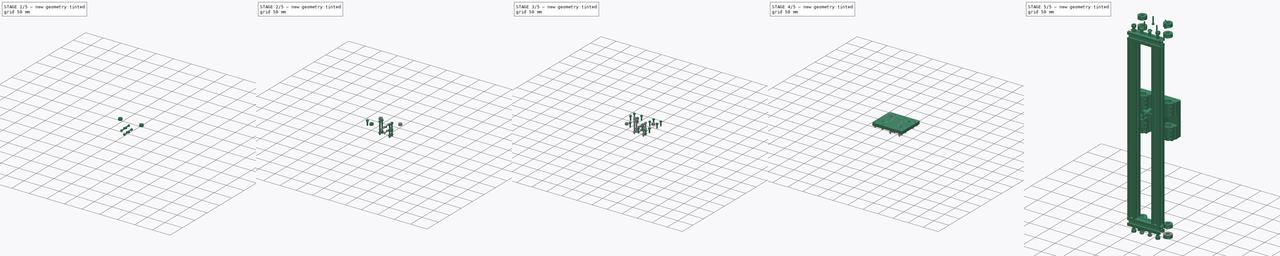
[diagram: build sequence overview — one tinted view per stage of 5, left to right]
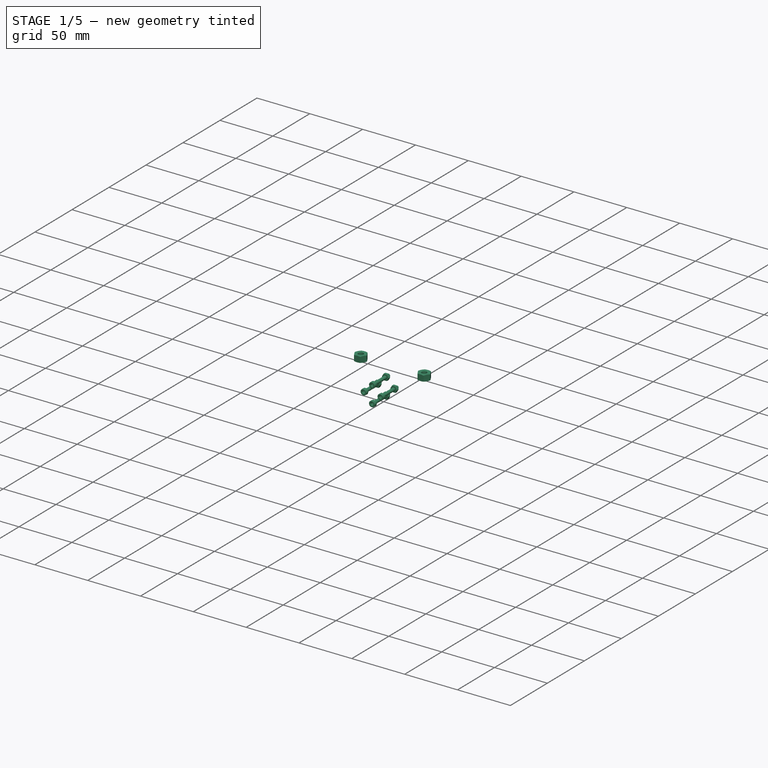
[diagram: stage 1 of 5 — iso view after this stage's code; geometry added in this stage tinted green]
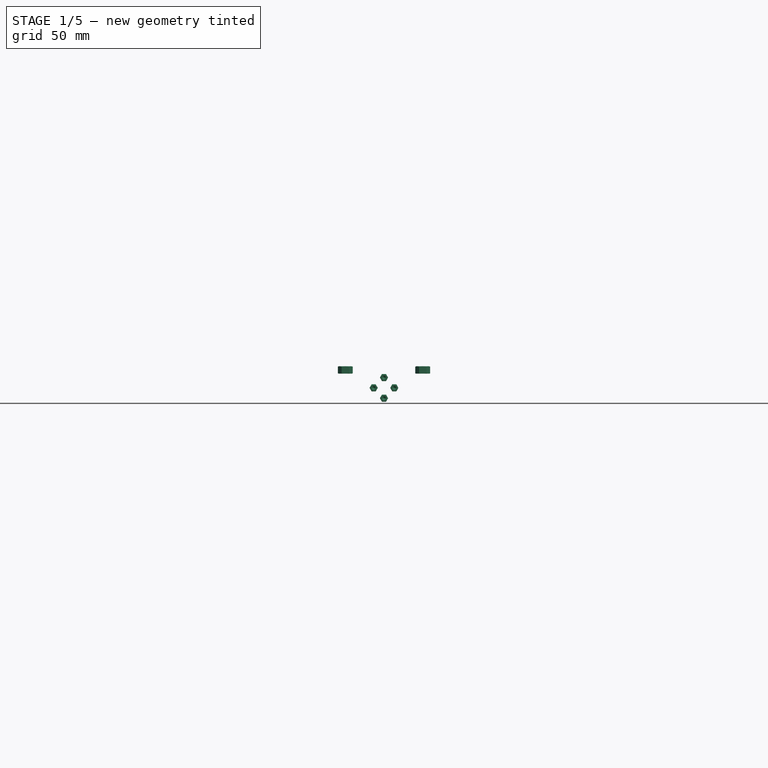
[diagram: stage 1 of 5 — front view after this stage's code; geometry added in this stage tinted green]
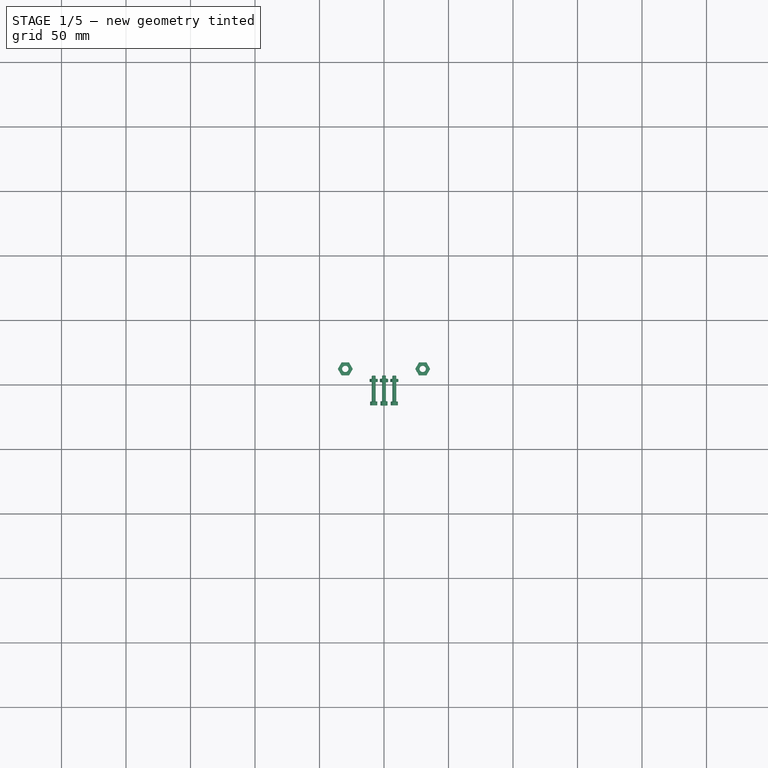
[diagram: stage 1 of 5 — top view after this stage's code; geometry added in this stage tinted green]
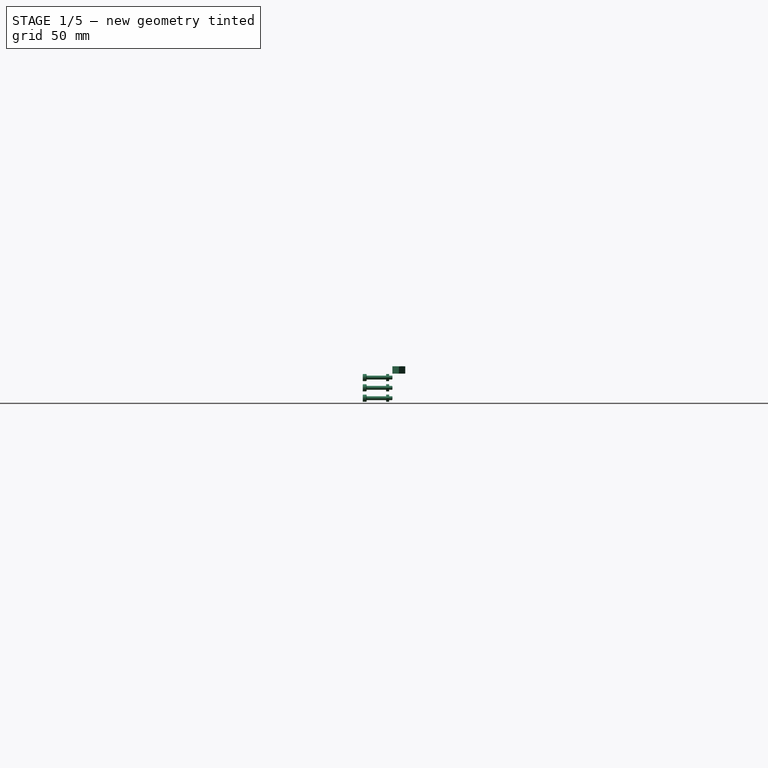
[diagram: stage 1 of 5 — right view after this stage's code; geometry added in this stage tinted green]
FCSTD DOCUMENT  (FreeCAD 0.19R17798 (Git))
Label: threaded_ass1e
License: All rights reserved
LicenseURL: http://en.wikipedia.org/wiki/All_rights_reserved
objects: Part::FeaturePython×42, Part::Feature×36, Part::Compound×22, Sketcher::SketchObject×5, PartDesign::Pocket×5, PartDesign::Fillet×3, PartDesign::Pad×1
note: 120 computed .brp shape members not serialized (recipe doc carries the construction recipe); baked Part::Feature solids carry a one-line shape summary decoded from their .brp

FEATURE [Part::FeaturePython] Nut006  label="M6-Nut004"  # Fasteners workbench fastener (typed FeaturePython)
  Placement = pos=(20,62,0) rot=(0,0,1;0rad)
  Visibility1 = false
  diameter = 2
  invert = false
  matchOuter = false
  offset = 0
  thread = false
  type = 2
FEATURE [Part::FeaturePython] Nut007  label="M6-Nut003"  # Fasteners workbench fastener (typed FeaturePython)
  Placement = pos=(80,62,0) rot=(0,0,1;0rad)
  Visibility1 = false
  diameter = 2
  invert = false
  matchOuter = false
  offset = 0
  thread = false
  type = 2
FEATURE [Part::FeaturePython] Screw032  label="M3x20-Screw"  # Fasteners workbench fastener (typed FeaturePython)
  Placement = pos=(50,37,-19) rot=(1,0,0;1.5708rad)
  Visibility1 = false
  diameter = 4
  invert = false
  length = 7
  matchOuter = false
  offset = 0
  thread = false
  type = 15
FEATURE [Part::FeaturePython] Nut008  label="M3-Nut"  # Fasteners workbench fastener (typed FeaturePython)
  Placement = pos=(50,54.5,-19) rot=(1,0,0;1.5708rad)
  Visibility1 = false
  diameter = 4
  invert = false
  matchOuter = false
  offset = 0
  thread = false
  type = 4
FEATURE [Part::Compound] Compound017  label="m3x20screwnut"
  Links = -> [Screw032,Nut008]
  Placement = pos=(8,0,8) rot=(0,0,1;0rad)
FEATURE [Part::FeaturePython] Screw033  label="M3x20-Screw001"  # Fasteners workbench fastener (typed FeaturePython)
  Placement = pos=(50,37,-19) rot=(1,0,0;1.5708rad)
  Visibility1 = false
  diameter = 4
  invert = false
  length = 7
  matchOuter = false
  offset = 0
  thread = false
  type = 15
FEATURE [Part::FeaturePython] Nut009  label="M3-Nut001"  # Fasteners workbench fastener (typed FeaturePython)
  Placement = pos=(50,54.5,-19) rot=(1,0,0;1.5708rad)
  Visibility1 = false
  diameter = 4
  invert = false
  matchOuter = false
  offset = 0
  thread = false
  type = 4
FEATURE [Part::Compound] Compound018  label="m3x20screwnut001"
  Links = -> [Screw033,Nut009]
  Placement = pos=(0,0,16) rot=(0,0,1;0rad)
FEATURE [Part::FeaturePython] Screw034  label="M3x20-Screw002"  # Fasteners workbench fastener (typed FeaturePython)
  Placement = pos=(50,37,-19) rot=(1,0,0;1.5708rad)
  Visibility1 = false
  diameter = 4
  invert = false
  length = 7
  matchOuter = false
  offset = 0
  thread = false
  type = 15
FEATURE [Part::FeaturePython] Nut010  label="M3-Nut002"  # Fasteners workbench fastener (typed FeaturePython)
  Placement = pos=(50,54.5,-19) rot=(1,0,0;1.5708rad)
  Visibility1 = false
  diameter = 4
  invert = false
  matchOuter = false
  offset = 0
  thread = false
  type = 4
FEATURE [Part::Compound] Compound019  label="m3x20screwnut002"
  Links = -> [Screw034,Nut010]
FEATURE [Part::FeaturePython] Screw035  label="M3x20-Screw003"  # Fasteners workbench fastener (typed FeaturePython)
  Placement = pos=(50,37,-19) rot=(1,0,0;1.5708rad)
  Visibility1 = false
  diameter = 4
  invert = false
  length = 7
  matchOuter = false
  offset = 0
  thread = false
  type = 15
FEATURE [Part::FeaturePython] Nut011  label="M3-Nut003"  # Fasteners workbench fastener (typed FeaturePython)
  Placement = pos=(50,54.5,-19) rot=(1,0,0;1.5708rad)
  Visibility1 = false
  diameter = 4
  invert = false
  matchOuter = false
  offset = 0
  thread = false
  type = 4
FEATURE [Part::Compound] Compound020  label="m3x20screwnut003"
  Links = -> [Screw035,Nut011]
  Placement = pos=(-8,0,8) rot=(0,0,1;0rad)
FEATURE [Part::Compound] Compound021  label="m3x20screwnuts"
  Links = -> [Compound017,Compound018,Compound019,Compound020]
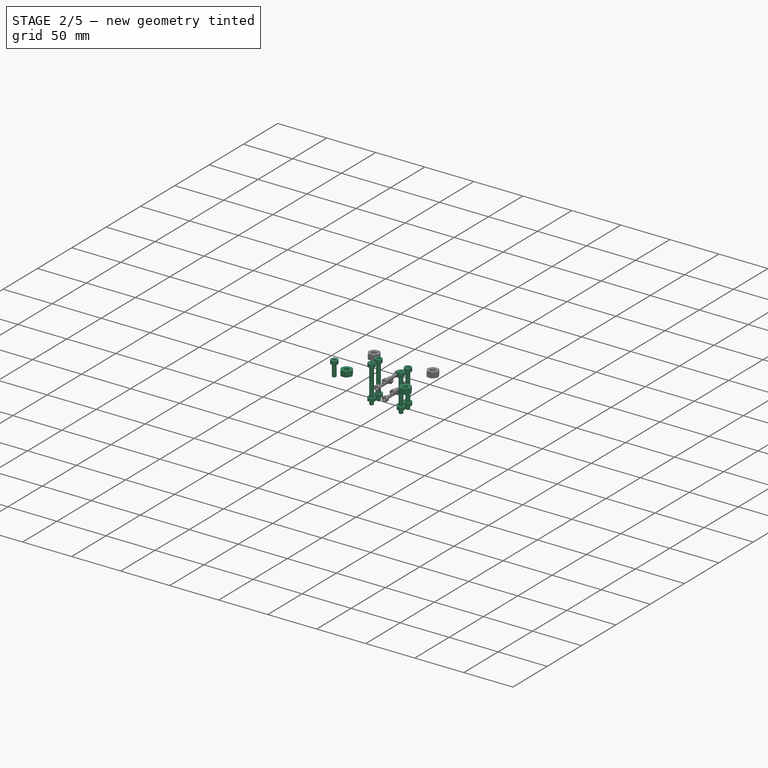
[diagram: stage 2 of 5 — iso view after this stage's code; geometry added in this stage tinted green]
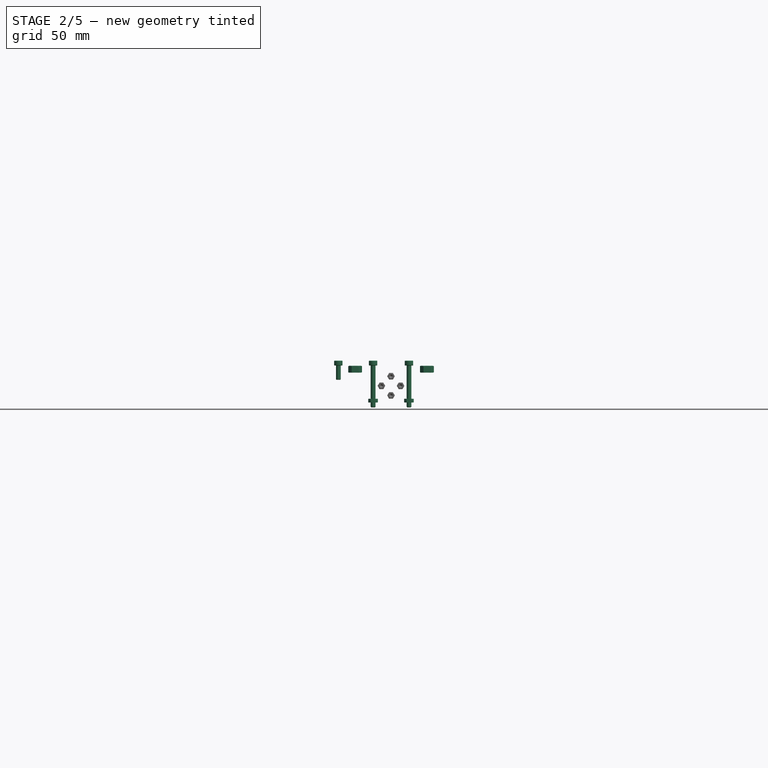
[diagram: stage 2 of 5 — front view after this stage's code; geometry added in this stage tinted green]
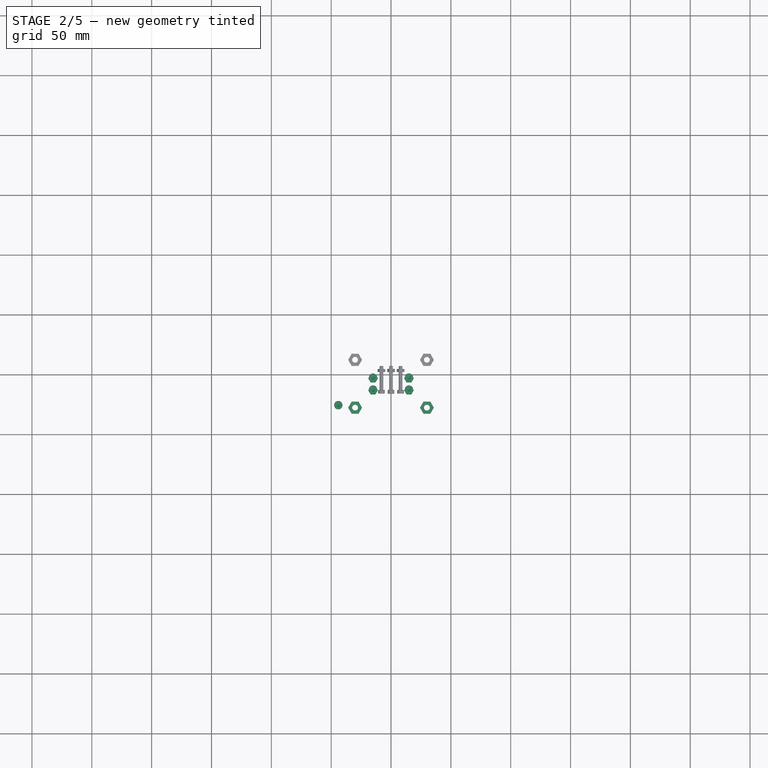
[diagram: stage 2 of 5 — top view after this stage's code; geometry added in this stage tinted green]
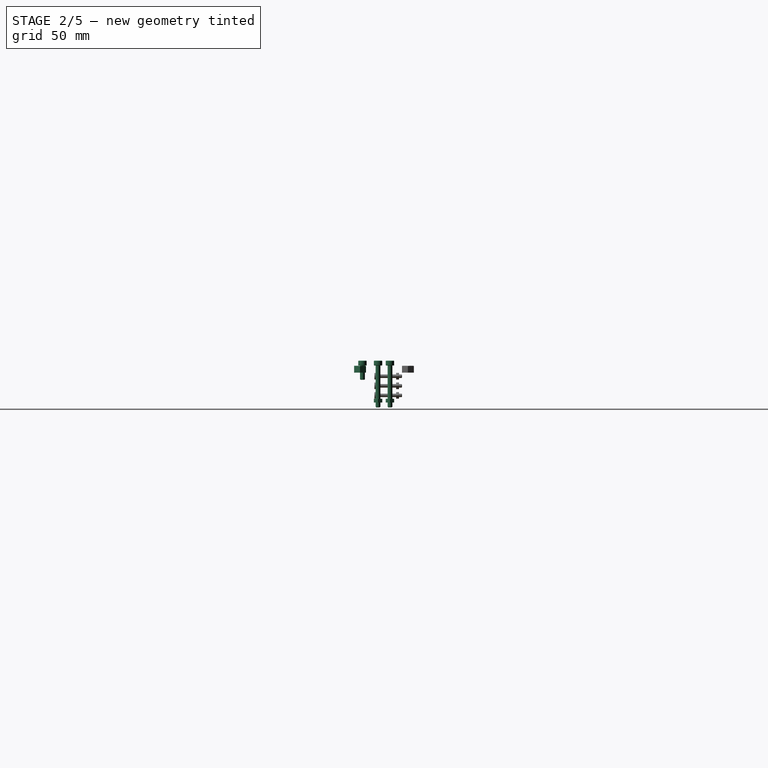
[diagram: stage 2 of 5 — right view after this stage's code; geometry added in this stage tinted green]
FEATURE [Part::FeaturePython] Screw027  label="M4x12-Screw015"  # Fasteners workbench fastener (typed FeaturePython)
  Placement = pos=(6,24,6) rot=(0,0,1;0rad)
  Visibility1 = false
  diameter = 5
  invert = false
  length = 3
  matchOuter = false
  offset = 0
  thread = false
  type = 15
FEATURE [Part::FeaturePython] Screw028  label="M4x35-Screw"  # Fasteners workbench fastener (typed FeaturePython)
  Placement = pos=(35,37,6) rot=(0,0,1;0rad)
  Visibility1 = false
  diameter = 5
  invert = false
  length = 9
  matchOuter = false
  offset = 0
  thread = false
  type = 15
FEATURE [Part::FeaturePython] Screw029  label="M4x35-Screw001"  # Fasteners workbench fastener (typed FeaturePython)
  Placement = pos=(65,37,6) rot=(0,0,1;0rad)
  Visibility1 = false
  diameter = 5
  invert = false
  length = 9
  matchOuter = false
  offset = 0
  thread = false
  type = 15
FEATURE [Part::FeaturePython] Screw030  label="M4x35-Screw002"  # Fasteners workbench fastener (typed FeaturePython)
  Placement = pos=(65,47,6) rot=(0,0,1;0rad)
  Visibility1 = false
  diameter = 5
  invert = false
  length = 9
  matchOuter = false
  offset = 0
  thread = false
  type = 15
FEATURE [Part::FeaturePython] Screw031  label="M4x35-Screw003"  # Fasteners workbench fastener (typed FeaturePython)
  Placement = pos=(35,47,6) rot=(0,0,1;0rad)
  Visibility1 = false
  diameter = 5
  invert = false
  length = 9
  matchOuter = false
  offset = 0
  thread = false
  type = 15
FEATURE [Part::Compound] Compound005  label="m4x35ers"
  Links = -> [Screw028,Screw029,Screw030,Screw031]
FEATURE [Part::FeaturePython] Nut001  label="M4-Nut"  # Fasteners workbench fastener (typed FeaturePython)
  Placement = pos=(35,37,-25) rot=(0,0,1;0rad)
  Visibility1 = false
  diameter = 6
  invert = false
  matchOuter = false
  offset = 0
  thread = false
  type = 4
FEATURE [Part::FeaturePython] Nut002  label="M4-Nut001"  # Fasteners workbench fastener (typed FeaturePython)
  Placement = pos=(35,47,-25) rot=(0,0,1;0rad)
  Visibility1 = false
  diameter = 6
  invert = false
  matchOuter = false
  offset = 0
  thread = false
  type = 4
FEATURE [Part::FeaturePython] Nut003  label="M4-Nut002"  # Fasteners workbench fastener (typed FeaturePython)
  Placement = pos=(65,47,-25) rot=(0,0,1;0rad)
  Visibility1 = false
  diameter = 6
  invert = false
  matchOuter = false
  offset = 0
  thread = false
  type = 4
FEATURE [Part::FeaturePython] Nut004  label="M4-Nut003"  # Fasteners workbench fastener (typed FeaturePython)
  Placement = pos=(65,37,-25) rot=(0,0,1;0rad)
  Visibility1 = false
  diameter = 6
  invert = false
  matchOuter = false
  offset = 0
  thread = false
  type = 4
FEATURE [Part::Compound] Compound015  label="m4nuts"
  Links = -> [Nut001,Nut002,Nut003,Nut004]
FEATURE [Part::FeaturePython] Nut  label="M6-Nut"  # Fasteners workbench fastener (typed FeaturePython)
  Placement = pos=(20,22,0) rot=(0,0,1;0rad)
  Visibility1 = false
  diameter = 2
  invert = false
  matchOuter = false
  offset = 0
  thread = false
  type = 2
FEATURE [Part::FeaturePython] Nut005  label="M6-Nut001"  # Fasteners workbench fastener (typed FeaturePython)
  Placement = pos=(80,22,0) rot=(0,0,1;0rad)
  Visibility1 = false
  diameter = 2
  invert = false
  matchOuter = false
  offset = 0
  thread = false
  type = 2
FEATURE [Part::Compound] Compound016  label="m6nuts"
  Links = -> [Nut,Nut005,Nut006,Nut007]
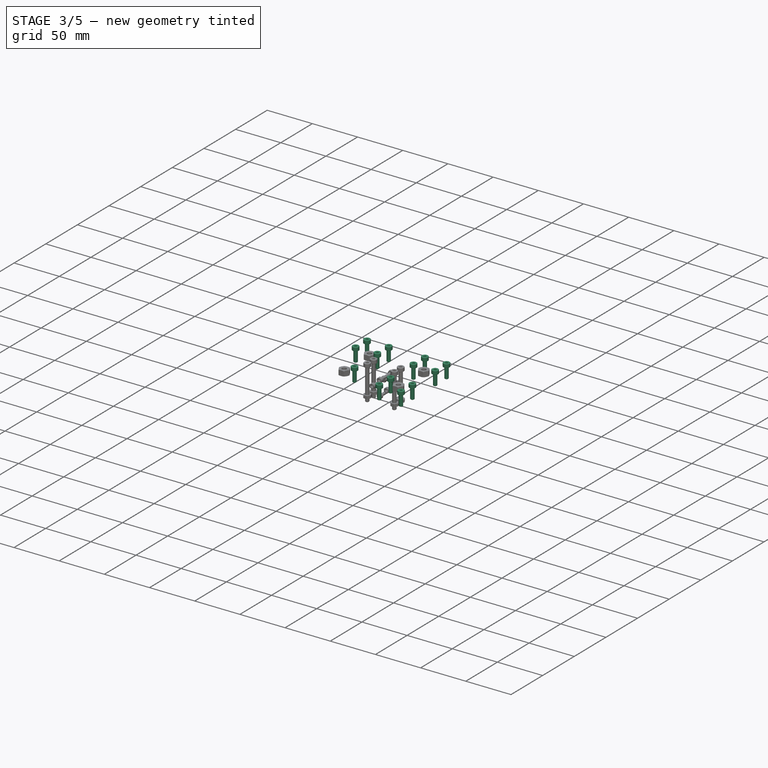
[diagram: stage 3 of 5 — iso view after this stage's code; geometry added in this stage tinted green]
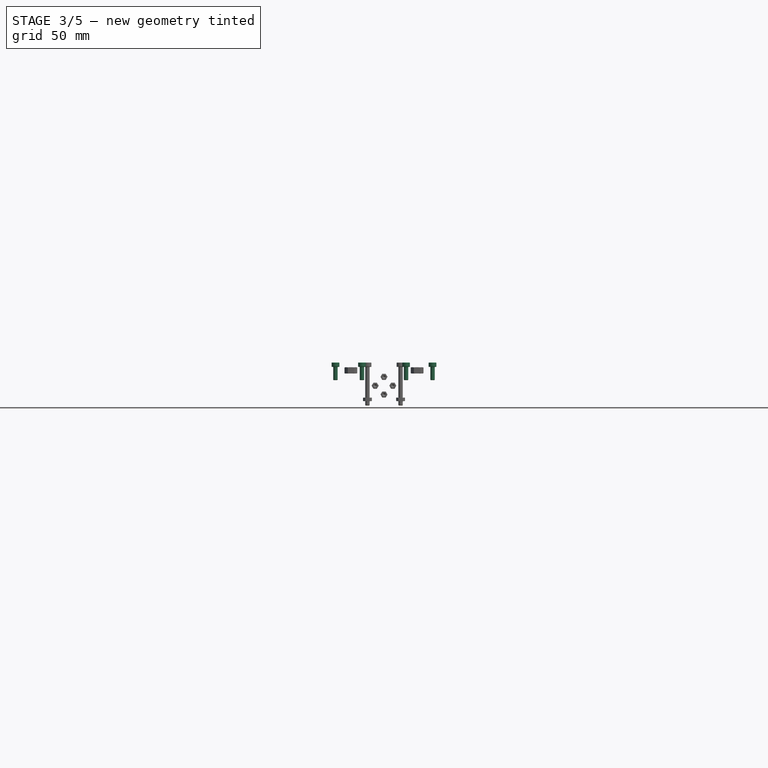
[diagram: stage 3 of 5 — front view after this stage's code; geometry added in this stage tinted green]
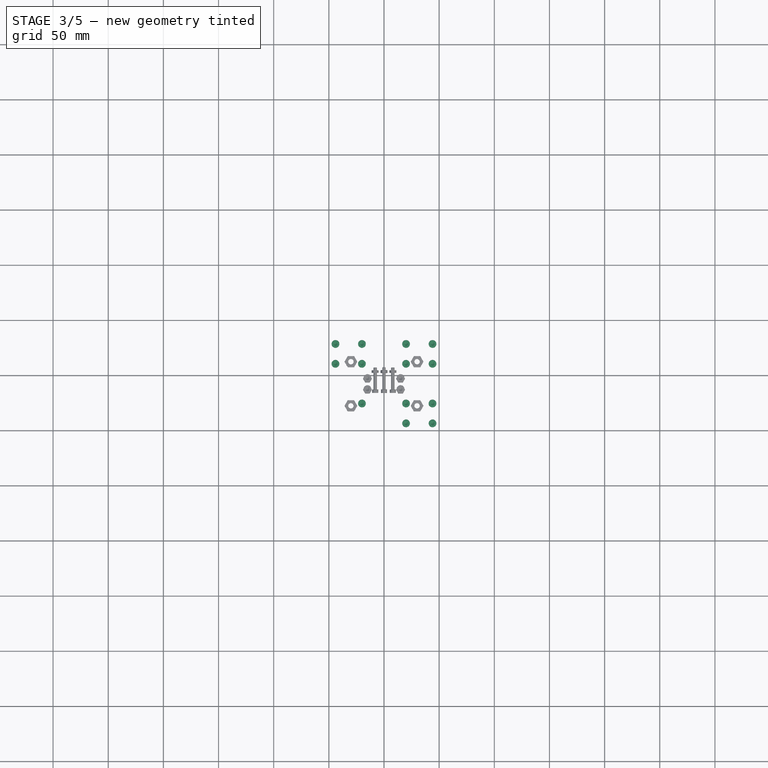
[diagram: stage 3 of 5 — top view after this stage's code; geometry added in this stage tinted green]
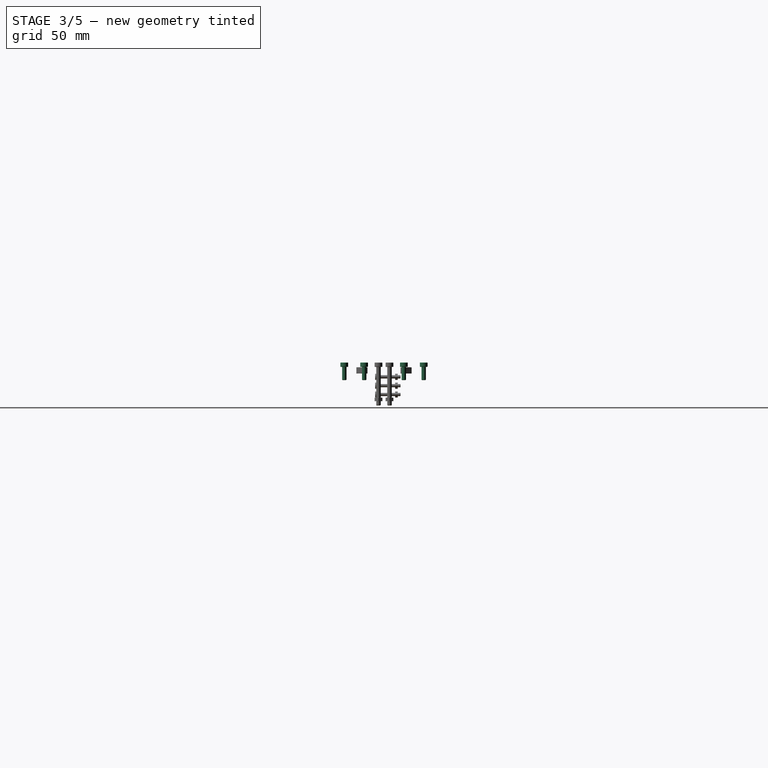
[diagram: stage 3 of 5 — right view after this stage's code; geometry added in this stage tinted green]
FEATURE [Part::FeaturePython] Screw002  label="M4x12-Screw002"  # Fasteners workbench fastener (typed FeaturePython)
  Placement = pos=(30,24,6) rot=(0,0,1;0rad)
  Visibility1 = false
  diameter = 5
  invert = false
  length = 3
  matchOuter = false
  offset = 0
  thread = false
  type = 15
FEATURE [Part::Feature] Fusion002  label="sc8uu001"
  Placement = pos=(82,15,-22) rot=(0,0,1;0rad)
  shape: bbox 34.5 x 30 x 22 mm, 638 faces, 2 solids (baked)
FEATURE [Part::FeaturePython] Screw004  label="M4x12-Screw004"  # Fasteners workbench fastener (typed FeaturePython)
  Placement = pos=(30,6,6) rot=(0,0,1;0rad)
  Visibility1 = false
  diameter = 5
  invert = false
  length = 3
  matchOuter = false
  offset = 0
  thread = false
  type = 15
FEATURE [Part::FeaturePython] Screw005  label="M4x12-Screw005"  # Fasteners workbench fastener (typed FeaturePython)
  Placement = pos=(6,6,6) rot=(0,0,1;0rad)
  Visibility1 = false
  diameter = 5
  invert = false
  length = 3
  matchOuter = false
  offset = 0
  thread = false
  type = 15
FEATURE [Part::FeaturePython] Screw006  label="M4x12-Screw006"  # Fasteners workbench fastener (typed FeaturePython)
  Placement = pos=(30,24,6) rot=(0,0,1;0rad)
  Visibility1 = false
  diameter = 5
  invert = false
  length = 3
  matchOuter = false
  offset = 0
  thread = false
  type = 15
FEATURE [Part::FeaturePython] Screw007  label="M4x12-Screw007"  # Fasteners workbench fastener (typed FeaturePython)
  Placement = pos=(6,24,6) rot=(0,0,1;0rad)
  Visibility1 = false
  diameter = 5
  invert = false
  length = 3
  matchOuter = false
  offset = 0
  thread = false
  type = 15
FEATURE [Part::Compound] Compound014  label="m4x12_4er001"
  Links = -> [Screw005,Screw004,Screw006,Screw007]
  Placement = pos=(64,0,0) rot=(0,0,1;0rad)
FEATURE [Part::FeaturePython] Screw008  label="M4x12-Screw008"  # Fasteners workbench fastener (typed FeaturePython)
  Placement = pos=(30,6,6) rot=(0,0,1;0rad)
  Visibility1 = false
  diameter = 5
  invert = false
  length = 3
  matchOuter = false
  offset = 0
  thread = false
  type = 15
FEATURE [Part::FeaturePython] Screw021  label="M4x12-Screw009"  # Fasteners workbench fastener (typed FeaturePython)
  Placement = pos=(30,24,6) rot=(0,0,1;0rad)
  Visibility1 = false
  diameter = 5
  invert = false
  length = 3
  matchOuter = false
  offset = 0
  thread = false
  type = 15
FEATURE [Part::FeaturePython] Screw022  label="M4x12-Screw010"  # Fasteners workbench fastener (typed FeaturePython)
  Placement = pos=(6,24,6) rot=(0,0,1;0rad)
  Visibility1 = false
  diameter = 5
  invert = false
  length = 3
  matchOuter = false
  offset = 0
  thread = false
  type = 15
FEATURE [Part::FeaturePython] Screw023  label="M4x12-Screw011"  # Fasteners workbench fastener (typed FeaturePython)
  Placement = pos=(6,6,6) rot=(0,0,1;0rad)
  Visibility1 = false
  diameter = 5
  invert = false
  length = 3
  matchOuter = false
  offset = 0
  thread = false
  type = 15
FEATURE [Part::Compound] Compound002  label="m4x12_4er002"
  Links = -> [Screw023,Screw008,Screw021,Screw022]
  Placement = pos=(64,54,0) rot=(0,0,1;0rad)
FEATURE [Part::FeaturePython] Screw024  label="M4x12-Screw012"  # Fasteners workbench fastener (typed FeaturePython)
  Placement = pos=(6,6,6) rot=(0,0,1;0rad)
  Visibility1 = false
  diameter = 5
  invert = false
  length = 3
  matchOuter = false
  offset = 0
  thread = false
  type = 15
FEATURE [Part::FeaturePython] Screw025  label="M4x12-Screw013"  # Fasteners workbench fastener (typed FeaturePython)
  Placement = pos=(30,6,6) rot=(0,0,1;0rad)
  Visibility1 = false
  diameter = 5
  invert = false
  length = 3
  matchOuter = false
  offset = 0
  thread = false
  type = 15
FEATURE [Part::FeaturePython] Screw026  label="M4x12-Screw014"  # Fasteners workbench fastener (typed FeaturePython)
  Placement = pos=(30,24,6) rot=(0,0,1;0rad)
  Visibility1 = false
  diameter = 5
  invert = false
  length = 3
  matchOuter = false
  offset = 0
  thread = false
  type = 15
FEATURE [Part::Compound] Compound003  label="m4x12_4er003"
  Links = -> [Screw024,Screw025,Screw026,Screw027]
  Placement = pos=(0,54,0) rot=(0,0,1;0rad)
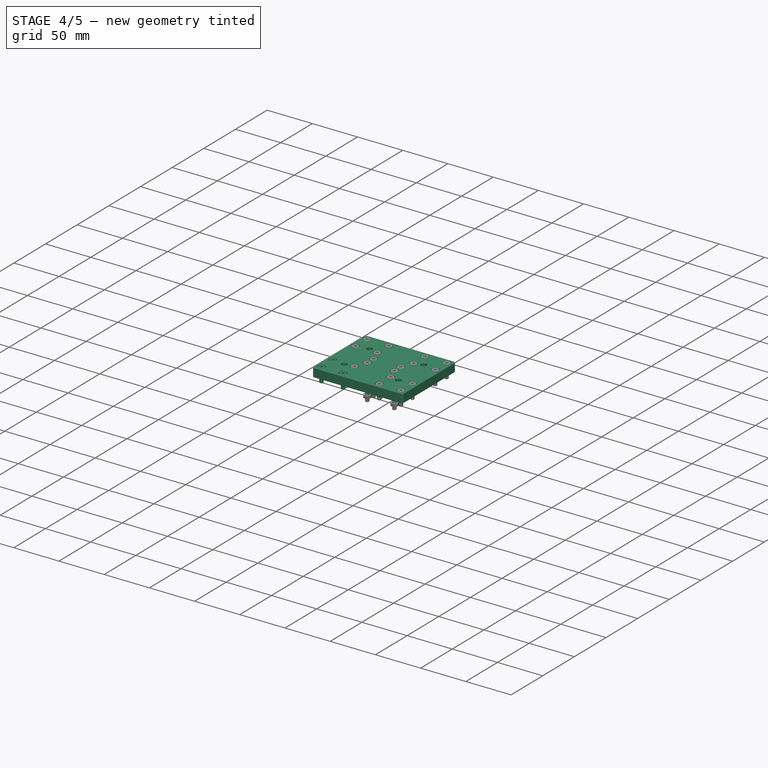
[diagram: stage 4 of 5 — iso view after this stage's code; geometry added in this stage tinted green]
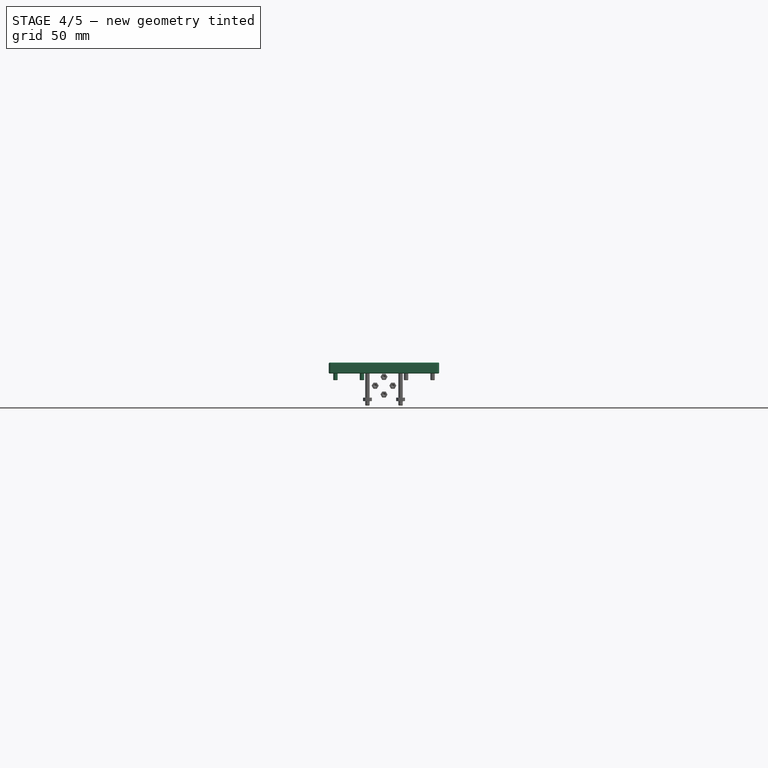
[diagram: stage 4 of 5 — front view after this stage's code; geometry added in this stage tinted green]
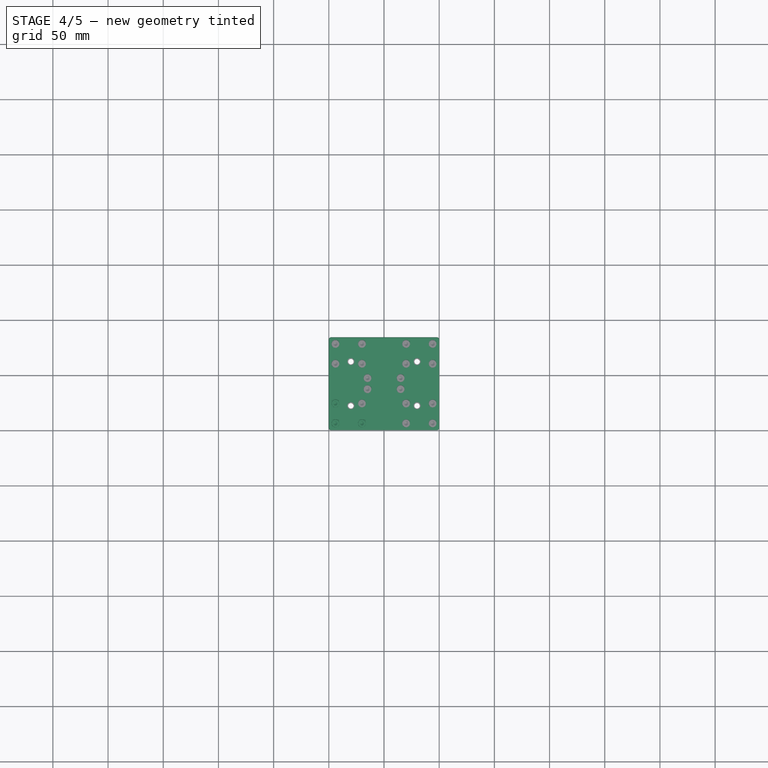
[diagram: stage 4 of 5 — top view after this stage's code; geometry added in this stage tinted green]
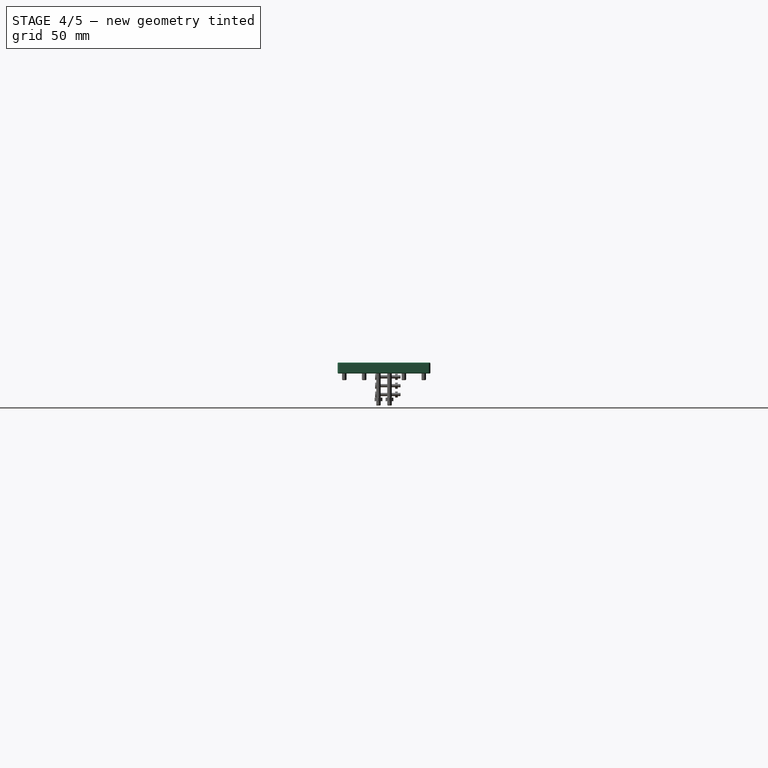
[diagram: stage 4 of 5 — right view after this stage's code; geometry added in this stage tinted green]
FEATURE [Part::FeaturePython] Screw020  label="M4x12-Screw"  # Fasteners workbench fastener (typed FeaturePython)
  Placement = pos=(6,6,6) rot=(0,0,1;0rad)
  Visibility1 = false
  diameter = 5
  invert = false
  length = 3
  matchOuter = false
  offset = 0
  thread = false
  type = 15
FEATURE [Part::Feature] Fusion003  label="sc8uu002"
  Placement = pos=(18,69,-22) rot=(0,0,1;0rad)
  shape: bbox 34.5 x 30 x 22 mm, 638 faces, 2 solids (baked)
FEATURE [Part::FeaturePython] Screw001  label="M4x12-Screw001"  # Fasteners workbench fastener (typed FeaturePython)
  Placement = pos=(30,6,6) rot=(0,0,1;0rad)
  Visibility1 = false
  diameter = 5
  invert = false
  length = 3
  matchOuter = false
  offset = 0
  thread = false
  type = 15
FEATURE [Part::FeaturePython] Screw003  label="M4x12-Screw003"  # Fasteners workbench fastener (typed FeaturePython)
  Placement = pos=(6,24,6) rot=(0,0,1;0rad)
  Visibility1 = false
  diameter = 5
  invert = false
  length = 3
  matchOuter = false
  offset = 0
  thread = false
  type = 15
FEATURE [Part::Compound] Compound013  label="m4x12_4er"
  Links = -> [Screw020,Screw001,Screw002,Screw003]
FEATURE [Part::Feature] Cut001  label="trapeznut"
  Placement = pos=(50,35,-11) rot=(0,0,1;1.5708rad)
  shape: bbox 22 x 24 x 22 mm, 53 faces (baked)
FEATURE [Part::Feature] Chamfer002001  label="nutblock"
  Placement = pos=(25,32,-22) rot=(0,0,1;0rad)
  shape: bbox 50 x 20 x 22 mm, 53 faces (baked)
FEATURE [Part::Feature] Fusion004  label="sc8uu003"
  Placement = pos=(82,69,-22) rot=(0,0,1;0rad)
  shape: bbox 34.5 x 30 x 22 mm, 638 faces, 2 solids (baked)
FEATURE [Part::Feature] Fusion001001006  label="sc8uu"
  Placement = pos=(18,15,-22) rot=(0,0,1;0rad)
  shape: bbox 34.5 x 30 x 22 mm, 638 faces, 2 solids (baked)
FEATURE [Sketcher::SketchObject] Sketch
  MapMode = 5
  Support = -> [XY_Plane]
  sketch-geometry (4):
    g0: LineSegment StartX=0 StartY=84 StartZ=0 EndX=100 EndY=84 EndZ=0
    g1: LineSegment StartX=100 StartY=84 StartZ=0 EndX=100 EndY=0 EndZ=0
    g2: LineSegment StartX=100 StartY=0 StartZ=0 EndX=0 EndY=0 EndZ=0
    g3: LineSegment StartX=0 StartY=0 StartZ=0 EndX=0 EndY=84 EndZ=0
  constraints (11):
    c: Coincident(g0,g1)
    c: Coincident(g1,g2)
    c: Coincident(g2,g3)
    c: Coincident(g3,g0)
    c: Horizontal(g0)
    c: Horizontal(g2)
    c: Vertical(g1)
    c: Vertical(g3)
    c: Coincident(g2,g-1)
    c: DistanceX(g0,g0) = 100
    c: DistanceY(g3,g3) = 84
FEATURE [PartDesign::Pad] Pad
  Length = 10
  Length2 = 100
  Profile = -> Sketch
  Type = 0
FEATURE [Sketcher::SketchObject] Sketch001
  MapMode = 5
  Placement = pos=(0,0,10) rot=(0,0,1;0rad)
  Support = -> [Pad]
  sketch-geometry (20):
    g0: Circle CenterX=6 CenterY=78 CenterZ=0 NormalX=0 NormalY=0 NormalZ=1 AngleXU=0 Radius=2.1
    g1: Circle CenterX=30 CenterY=78 CenterZ=0 NormalX=0 NormalY=0 NormalZ=1 AngleXU=0 Radius=2.1
    g2: Circle CenterX=6 CenterY=60 CenterZ=0 NormalX=0 NormalY=0 NormalZ=1 AngleXU=0 Radius=2.1
    g3: Circle CenterX=30 CenterY=60 CenterZ=0 NormalX=0 NormalY=0 NormalZ=1 AngleXU=0 Radius=2.1
    g4: Circle CenterX=6 CenterY=24 CenterZ=0 NormalX=0 NormalY=0 NormalZ=1 AngleXU=0 Radius=2.1
    g5: Circle CenterX=30 CenterY=24 CenterZ=0 NormalX=0 NormalY=0 NormalZ=1 AngleXU=0 Radius=2.1
    g6: Circle CenterX=6 CenterY=6 CenterZ=0 NormalX=0 NormalY=0 NormalZ=1 AngleXU=0 Radius=2.1
    g7: Circle CenterX=30 CenterY=6 CenterZ=0 NormalX=0 NormalY=0 NormalZ=1 AngleXU=0 Radius=2.1
    g8: Circle CenterX=70 CenterY=78 CenterZ=0 NormalX=0 NormalY=0 NormalZ=1 AngleXU=0 Radius=2.1
    g9: Circle CenterX=94 CenterY=78 CenterZ=0 NormalX=0 NormalY=0 NormalZ=1 AngleXU=0 Radius=2.1
    g10: Circle CenterX=70 CenterY=60 CenterZ=0 NormalX=0 NormalY=0 NormalZ=1 AngleXU=0 Radius=2.1
    g11: Circle CenterX=94 CenterY=60 CenterZ=0 NormalX=0 NormalY=0 NormalZ=1 AngleXU=0 Radius=2.1
    g12: Circle CenterX=70 CenterY=24 CenterZ=0 NormalX=0 NormalY=0 NormalZ=1 AngleXU=0 Radius=2.1
    g13: Circle CenterX=94 CenterY=24 CenterZ=0 NormalX=0 NormalY=0 NormalZ=1 AngleXU=0 Radius=2.1
    g14: Circle CenterX=70 CenterY=6 CenterZ=0 NormalX=0 NormalY=0 NormalZ=1 AngleXU=0 Radius=2.1
    g15: Circle CenterX=94 CenterY=6 CenterZ=0 NormalX=0 NormalY=0 NormalZ=1 AngleXU=0 Radius=2.1
    g16: Circle CenterX=35 CenterY=47 CenterZ=0 NormalX=0 NormalY=0 NormalZ=1 AngleXU=0 Radius=2.1
    g17: Circle CenterX=65 CenterY=47 CenterZ=0 NormalX=0 NormalY=0 NormalZ=1 AngleXU=0 Radius=2.1
    g18: Circle CenterX=35 CenterY=37 CenterZ=0 NormalX=0 NormalY=0 NormalZ=1 AngleXU=0 Radius=2.1
    g19: Circle CenterX=65 CenterY=37 CenterZ=0 NormalX=0 NormalY=0 NormalZ=1 AngleXU=0 Radius=2.1
  constraints (60):
    c: DistanceX(g-1,g6) = 6
    c: DistanceX(g-1,g15) = 94
    c: DistanceX(g6,g4) = 0
    c: DistanceX(g4,g2) = 0
    c: DistanceX(g2,g0) = 0
    c: DistanceX(g13,g15) = 0
    c: DistanceX(g11,g13) = 0
    c: DistanceX(g9,g11) = 0
    c: DistanceX(g6,g7) = 24
    c: DistanceX(g14,g15) = 24
    c: DistanceX(g5,g7) = 0
    c: DistanceX(g3,g5) = 0
    c: DistanceX(g3,g1) = 0
    c: DistanceX(g12,g14) = 0
    c: DistanceX(g10,g12) = 0
    c: DistanceX(g8,g10) = 0
    c: DistanceY(g-1,g6) = 6
    c: DistanceY(g-1,g0) = 78
    c: DistanceY(g6,g4) = 18
    c: DistanceY(g2,g0) = 18
    c: DistanceY(g6,g7) = 0
    c: DistanceY(g7,g14) = 0
    c: DistanceY(g14,g15) = 0
    c: DistanceY(g4,g5) = 0
    c: DistanceY(g5,g12) = 0
    c: DistanceY(g12,g13) = 0
    c: DistanceY(g3,g2) = 0
    c: DistanceY(g3,g10) = 0
    c: DistanceY(g10,g11) = 0
    c: DistanceY(g1,g0) = 0
    c: DistanceY(g8,g1) = 0
    c: DistanceY(g9,g8) = 0
    c: Radius(g0) = 2.1
    c: Equal(g0,g2)
    c: Equal(g0,g4)
    c: Equal(g0,g6)
    c: Equal(g0,g1)
    c: Equal(g0,g3)
    c: Equal(g0,g5)
    c: Equal(g0,g7)
    c: Equal(g0,g14)
    c: Equal(g0,g12)
    c: Equal(g0,g10)
    c: Equal(g0,g8)
    c: Equal(g0,g9)
    c: Equal(g0,g11)
    c: Equal(g0,g13)
    c: Equal(g0,g15)
    c: DistanceX(g-1,g18) = 35
    c: DistanceY(g-1,g18) = 37
    c: DistanceX(g18,g19) = 30
    c: DistanceY(g18,g19) = 0
    c: DistanceX(g16,g18) = 0
    c: DistanceY(g18,g16) = 10
    c: DistanceY(g16,g17) = 0
    c: DistanceX(g17,g19) = 0
    c: Radius(g16) = 2.1
    c: Equal(g16,g17)
    c: Equal(g16,g19)
    c: Equal(g16,g18)
FEATURE [PartDesign::Pocket] Pocket
  BaseFeature = -> Pad
  Length = 10
  Length2 = 100
  Profile = -> Sketch001
  Type = 0
FEATURE [Sketcher::SketchObject] Sketch002
  MapMode = 5
  Placement = pos=(0,0,10) rot=(0,0,1;0rad)
  Support = -> [Pocket]
  sketch-geometry (4):
    g0: Circle CenterX=20 CenterY=62 CenterZ=0 NormalX=0 NormalY=0 NormalZ=1 AngleXU=0 Radius=3.2
    g1: Circle CenterX=20 CenterY=22 CenterZ=0 NormalX=0 NormalY=0 NormalZ=1 AngleXU=0 Radius=3.2
    g2: Circle CenterX=80 CenterY=62 CenterZ=0 NormalX=0 NormalY=0 NormalZ=1 AngleXU=0 Radius=3.2
    g3: Circle CenterX=80 CenterY=22 CenterZ=0 NormalX=0 NormalY=0 NormalZ=1 AngleXU=0 Radius=3.2
  constraints (12):
    c: DistanceX(g-1,g1) = 20
    c: DistanceY(g-1,g1) = 22
    c: DistanceX(g1,g3) = 60
    c: DistanceY(g1,g0) = 40
    c: DistanceY(g1,g3) = 0
    c: DistanceY(g2,g0) = 0
    c: DistanceX(g2,g3) = 0
    c: Radius(g0) = 3.2
    c: Equal(g0,g2)
    c: Equal(g0,g3)
    c: Equal(g0,g1)
    c: DistanceX(g1,g0) = 0
FEATURE [PartDesign::Pocket] Pocket001
  BaseFeature = -> Pocket
  Length = 10
  Length2 = 100
  Profile = -> Sketch002
  Type = 0
FEATURE [Sketcher::SketchObject] Sketch003
  MapMode = 5
  Placement = pos=(0,0,10) rot=(0,0,1;0rad)
  Support = -> [Pocket001]
  sketch-geometry (20):
    g0: Circle CenterX=6 CenterY=78 CenterZ=0 NormalX=0 NormalY=0 NormalZ=1 AngleXU=0 Radius=4
    g1: Circle CenterX=30 CenterY=78 CenterZ=0 NormalX=0 NormalY=0 NormalZ=1 AngleXU=0 Radius=4
    g2: Circle CenterX=30 CenterY=60 CenterZ=0 NormalX=0 NormalY=0 NormalZ=1 AngleXU=0 Radius=4
    g3: Circle CenterX=6 CenterY=60 CenterZ=0 NormalX=0 NormalY=0 NormalZ=1 AngleXU=0 Radius=4
    g4: Circle CenterX=70 CenterY=78 CenterZ=0 NormalX=0 NormalY=0 NormalZ=1 AngleXU=0 Radius=4
    g5: Circle CenterX=94 CenterY=78 CenterZ=0 NormalX=0 NormalY=0 NormalZ=1 AngleXU=0 Radius=4
    g6: Circle CenterX=70 CenterY=60 CenterZ=0 NormalX=0 NormalY=0 NormalZ=1 AngleXU=0 Radius=4
    g7: Circle CenterX=94 CenterY=60 CenterZ=0 NormalX=0 NormalY=0 NormalZ=1 AngleXU=0 Radius=4
    g8: Circle CenterX=6 CenterY=24 CenterZ=0 NormalX=0 NormalY=0 NormalZ=1 AngleXU=0 Radius=4
    g9: Circle CenterX=30 CenterY=24 CenterZ=0 NormalX=0 NormalY=0 NormalZ=1 AngleXU=0 Radius=4
    g10: Circle CenterX=6 CenterY=6 CenterZ=0 NormalX=0 NormalY=0 NormalZ=1 AngleXU=0 Radius=4
    g11: Circle CenterX=30 CenterY=6 CenterZ=0 NormalX=0 NormalY=0 NormalZ=1 AngleXU=0 Radius=4
    g12: Circle CenterX=70 CenterY=24 CenterZ=0 NormalX=0 NormalY=0 NormalZ=1 AngleXU=0 Radius=4
    g13: Circle CenterX=94 CenterY=24 CenterZ=0 NormalX=0 NormalY=0 NormalZ=1 AngleXU=0 Radius=4
    g14: Circle CenterX=70 CenterY=6 CenterZ=0 NormalX=0 NormalY=0 NormalZ=1 AngleXU=0 Radius=4
    g15: Circle CenterX=94 CenterY=6 CenterZ=0 NormalX=0 NormalY=0 NormalZ=1 AngleXU=0 Radius=4
    g16: Circle CenterX=35 CenterY=47 CenterZ=0 NormalX=0 NormalY=0 NormalZ=1 AngleXU=0 Radius=4
    g17: Circle CenterX=35 CenterY=37 CenterZ=0 NormalX=0 NormalY=0 NormalZ=1 AngleXU=0 Radius=4
    g18: Circle CenterX=65 CenterY=37 CenterZ=0 NormalX=0 NormalY=0 NormalZ=1 AngleXU=0 Radius=4
    g19: Circle CenterX=65 CenterY=47 CenterZ=0 NormalX=0 NormalY=0 NormalZ=1 AngleXU=0 Radius=4
  constraints (60):
    c: DistanceY(g-1,g10) = 6
    c: DistanceX(g10,g11) = 24
    c: DistanceX(g-1,g15) = 94
    c: DistanceX(g14,g15) = 24
    c: DistanceY(g10,g8) = 18
    c: DistanceY(g-1,g0) = 78
    c: DistanceY(g3,g0) = 18
    c: DistanceY(g11,g10) = 0
    c: DistanceY(g11,g14) = 0
    c: DistanceY(g15,g14) = 0
    c: DistanceY(g8,g9) = 0
    c: DistanceY(g9,g12) = 0
    c: DistanceY(g13,g12) = 0
    c: DistanceY(g3,g2) = 0
    c: DistanceY(g6,g2) = 0
    c: DistanceY(g7,g6) = 0
    c: DistanceY(g0,g1) = 0
    c: DistanceY(g4,g1) = 0
    c: DistanceY(g5,g4) = 0
    c: DistanceX(g8,g10) = 0
    c: DistanceX(g3,g8) = 0
    c: DistanceX(g-1,g10) = 6
    c: DistanceX(g11,g9) = 0
    c: DistanceX(g9,g2) = 0
    c: DistanceX(g2,g1) = 0
    c: DistanceX(g12,g14) = 0
    c: DistanceX(g12,g6) = 0
    c: DistanceX(g4,g6) = 0
    c: DistanceX(g13,g15) = 0
    c: DistanceX(g7,g13) = 0
    c: DistanceX(g7,g5) = 0
    c: DistanceX(g-1,g17) = 35
    c: DistanceY(g-1,g17) = 37
    c: DistanceX(g17,g18) = 30
    c: DistanceY(g17,g16) = 10
    c: DistanceY(g19,g16) = 0
    c: DistanceY(g17,g18) = 0
    c: DistanceX(g19,g18) = 0
    c: DistanceX(g3,g0) = 0
    c: Radius(g0) = 4
    c: Equal(g0,g1)
    c: Equal(g0,g4)
    c: Equal(g0,g5)
    c: Equal(g0,g7)
    c: Equal(g0,g6)
    c: Equal(g0,g2)
    c: Equal(g0,g3)
    c: Equal(g0,g16)
    c: Equal(g0,g19)
    c: Equal(g0,g17)
    c: Equal(g0,g18)
    c: Equal(g0,g8)
    c: Equal(g0,g9)
    c: Equal(g0,g12)
    c: Equal(g0,g13)
    c: Equal(g0,g15)
    c: Equal(g0,g14)
    c: Equal(g0,g11)
    c: Equal(g0,g10)
    c: DistanceX(g17,g16) = 0
FEATURE [PartDesign::Pocket] Pocket002
  BaseFeature = -> Pocket001
  Length = 5
  Length2 = 100
  Profile = -> Sketch003
  Type = 0
FEATURE [PartDesign::Pocket] Pocket003
  BaseFeature = -> Pocket002
  Length = 4
  Length2 = 100
  Profile = -> Sketch003
  Type = 0
FEATURE [Sketcher::SketchObject] Sketch004
  MapMode = 5
  Placement = pos=(0,0,0) rot=(1,0,0;3.14159rad)
  Support = -> [Pocket003]
  sketch-geometry (4):
    g0: Circle CenterX=20 CenterY=-22 CenterZ=0 NormalX=0 NormalY=0 NormalZ=1 AngleXU=0 Radius=4.9
    g1: Circle CenterX=80 CenterY=-22 CenterZ=0 NormalX=0 NormalY=0 NormalZ=1 AngleXU=0 Radius=4.9
    g2: Circle CenterX=20 CenterY=-62 CenterZ=0 NormalX=0 NormalY=0 NormalZ=1 AngleXU=0 Radius=4.9
    g3: Circle CenterX=80 CenterY=-62 CenterZ=0 NormalX=0 NormalY=0 NormalZ=1 AngleXU=0 Radius=4.9
  constraints (12):
    c: DistanceY(g0,g-1) = 22
    c: DistanceX(g-1,g0) = 20
    c: DistanceX(g0,g1) = 60
    c: DistanceY(g1,g0) = 0
    c: DistanceY(g2,g0) = 40
    c: DistanceX(g2,g0) = 0
    c: DistanceY(g2,g3) = 0
    c: DistanceX(g3,g1) = 0
    c: Radius(g0) = 4.9
    c: Equal(g0,g1)
    c: Equal(g0,g3)
    c: Equal(g0,g2)
FEATURE [PartDesign::Pocket] Pocket004
  BaseFeature = -> Pocket003
  Length = 5.2
  Length2 = 100
  Profile = -> Sketch004
  Type = 0
FEATURE [PartDesign::Fillet] Fillet
  Base = -> Pocket004 [Edge8,Edge2,Edge1,Edge5]
  BaseFeature = -> Pocket004
  Radius = 2
FEATURE [PartDesign::Fillet] Fillet006
  Base = -> Fillet [Edge41,Edge43,Edge44,Edge42,Edge40,Edge37,Edge4,Edge39]
  BaseFeature = -> Fillet
  Radius = 0.8
FEATURE [PartDesign::Fillet] Fillet007
  Base = -> Fillet006 [Edge12,Edge14,Edge16,Edge15,Edge13,Edge11,Edge3,Edge6]
  BaseFeature = -> Fillet006
  Radius = 0.8
FEATURE [Part::Compound] Compound004  label="m4x12ers"
  Links = -> [Compound013,Compound014,Compound002,Compound003]
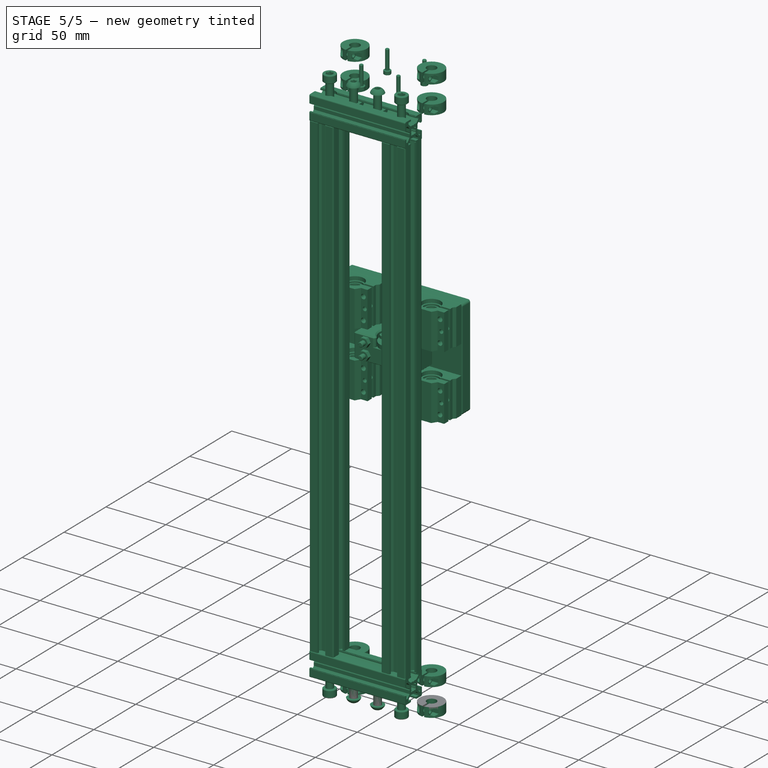
[diagram: stage 5 of 5 — iso view after this stage's code; geometry added in this stage tinted green]
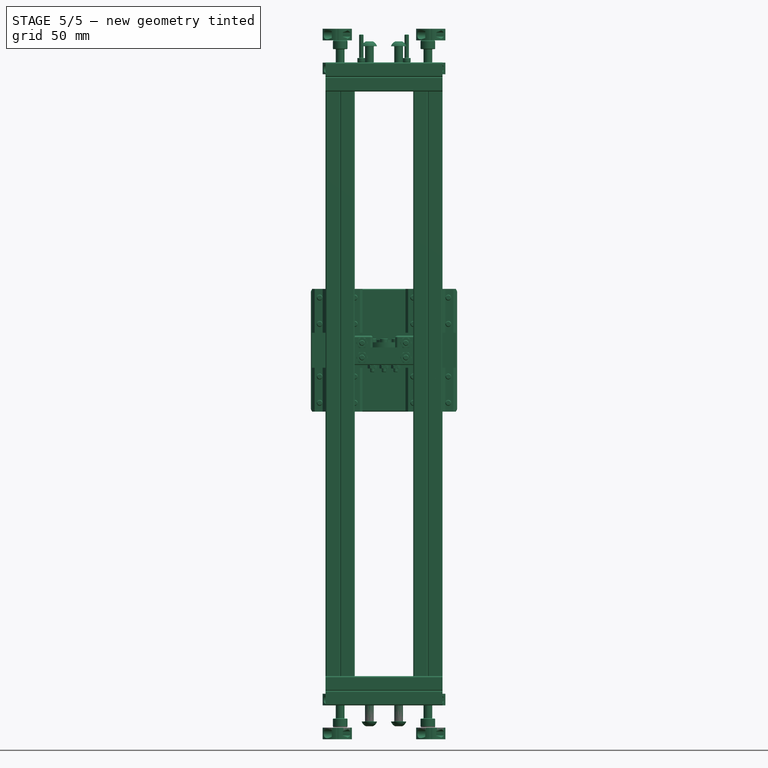
[diagram: stage 5 of 5 — front view after this stage's code; geometry added in this stage tinted green]
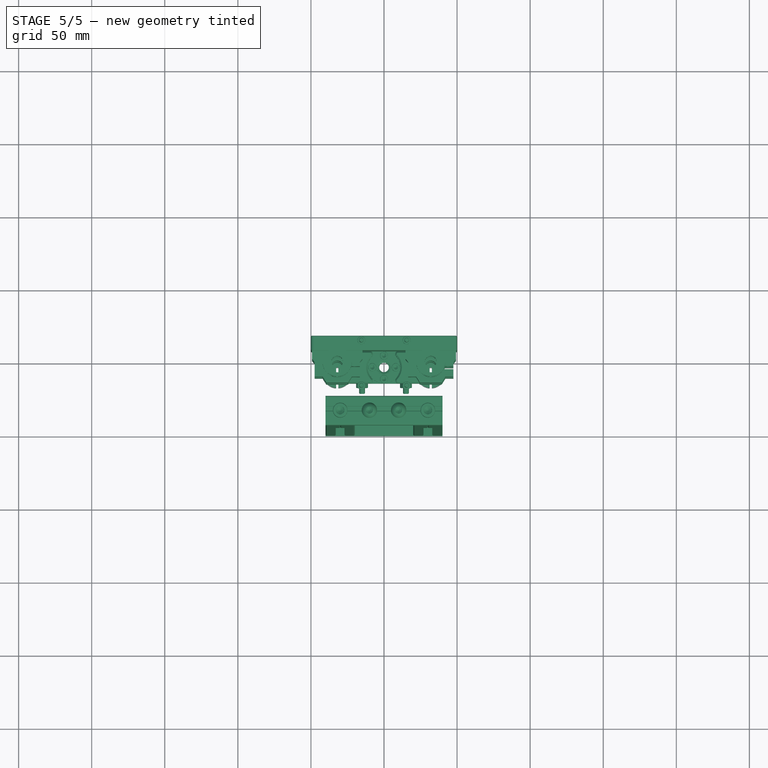
[diagram: stage 5 of 5 — top view after this stage's code; geometry added in this stage tinted green]
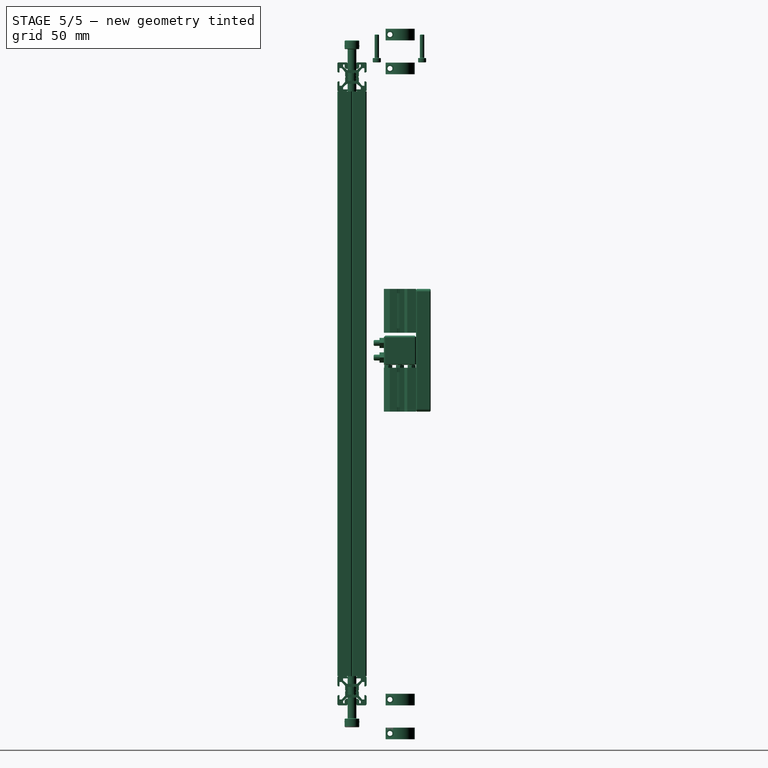
[diagram: stage 5 of 5 — right view after this stage's code; geometry added in this stage tinted green]
FEATURE [Part::Feature] Fillet001  label="endplate1b_chamf"
  shape: bbox 100 x 64 x 15 mm, 27 faces (baked)
FEATURE [Part::Feature] Fillet002  label="mountplate3b_chamf"
  Placement = pos=(0,0,455) rot=(0,0,1;0rad)
  shape: bbox 100 x 64 x 15 mm, 39 faces (baked)
FEATURE [Part::Feature] Pad001  label="shaft8x480"
  Placement = pos=(18,42.85,-5) rot=(0,0,1;0rad)
  shape: bbox 8 x 8 x 480 mm, 3 faces (baked)
FEATURE [Part::Feature] Pad002  label="shaft8x481"
  Placement = pos=(82,42.85,-5) rot=(0,0,1;0rad)
  shape: bbox 8 x 8 x 480 mm, 3 faces (baked)
FEATURE [Part::Feature] Fusion001  label="trapthread"
  Placement = pos=(50,42.85,-42) rot=(0,0,1;0rad)
  shape: bbox 12.27 x 13.21 x 480 mm, 558 faces (baked)
FEATURE [Part::Feature] Fusion001001001  label="nema17"
  Placement = pos=(50,42.85,510) rot=(0,1,0;3.14159rad)
  shape: bbox 48 x 42.3 x 60.1 mm, 110 faces (baked)
FEATURE [Part::Feature] Compound001  label="coupling-compound001"
  Placement = pos=(50,42.85,428) rot=(0,0,1;0rad)
  shape: bbox 28.44 x 28.71 x 24.7 mm, 76 faces, 5 solids (baked)
FEATURE [Part::Feature] Chamfer001  label="608zz"
  Placement = pos=(50,42.85,11) rot=(1,0,0;1.5708rad)
  shape: bbox 22 x 22 x 7 mm, 14 faces (baked)
FEATURE [Part::Feature] Body007  label="m6nutplate005"
  Placement = pos=(15,15,-3.5) rot=(0,0,-1;1.5708rad)
  shape: bbox 10 x 10 x 3 mm, 9 faces (baked)
FEATURE [Part::FeaturePython] b_tslot40_001_007  label="tslot40_Pocket001_008"  # a2plus imported part (geometry in sourceFile) (typed FeaturePython)
  Placement = pos=(60,10,15) rot=(-1,0,0;1.5708rad)
  Visibility1 = false
  Visibility11 = true
  a2p_Version = V0.1
  fixedPosition = false
  objectType = a2pPart
  sourceFile = .\Neuer Ordner (3)\tslot40.fcstd
  sourcePart = Pocket001
  subassemblyImport = false
  timeLastImport = 1585500225
  updateColors = true
FEATURE [Part::Feature] Body008  label="m6nutplate006"
  Placement = pos=(15,15,-3.5) rot=(0,0,-1;1.5708rad)
  shape: bbox 10 x 10 x 3 mm, 9 faces (baked)
FEATURE [Part::Feature] Pocket004003  label="tslot8con002"
  Placement = pos=(70,10,5) rot=(0,-1,0;1.5708rad)
  shape: bbox 80 x 20 x 20 mm, 150 faces (baked)
FEATURE [Part::Feature] Screw009  label="M6x16-Screw005"
  Placement = pos=(20,10,-16) rot=(1,0,0;3.14159rad)
  shape: bbox 10.5 x 10.5 x 19.3 mm, 15 faces (baked)
FEATURE [Part::Compound] Compound006  label="nutscrew020"
  Links = -> [Screw009,Body007]
  Placement = pos=(20,20,430) rot=(1,0,0;3.14159rad)
FEATURE [Part::FeaturePython] b_tslot40_001_010  label="tslot40_Pocket001_011"  # a2plus imported part (geometry in sourceFile) (typed FeaturePython)
  Placement = pos=(0,10,15) rot=(-1,0,0;1.5708rad)
  Visibility1 = false
  Visibility11 = true
  a2p_Version = V0.1
  fixedPosition = false
  objectType = a2pPart
  sourceFile = .\Neuer Ordner (3)\tslot40.fcstd
  sourcePart = Pocket001
  subassemblyImport = false
  timeLastImport = 1585500225
  updateColors = true
FEATURE [Part::Feature] Screw010  label="M6x16-Screw006"
  Placement = pos=(20,10,-16) rot=(1,0,0;3.14159rad)
  shape: bbox 10.5 x 10.5 x 19.3 mm, 15 faces (baked)
FEATURE [Part::Feature] Screw011  label="M6x40-Screw005"
  Placement = pos=(0,10,444) rot=(0,0,1;0rad)
  shape: bbox 10 x 10 x 46 mm, 19 faces (baked)
FEATURE [Part::Feature] Screw012  label="M6x40-Screw006"
  Placement = pos=(60,10,444) rot=(0,0,1;0rad)
  shape: bbox 10 x 10 x 46 mm, 19 faces (baked)
FEATURE [Part::Feature] Body009  label="m6nutplate007"
  Placement = pos=(15,15,-3.5) rot=(0,0,-1;1.5708rad)
  shape: bbox 10 x 10 x 3 mm, 9 faces (baked)
FEATURE [Part::Feature] Pocket004004  label="tslot8con003"
  Placement = pos=(70,10,425) rot=(0.707107,0,-0.707107;3.14159rad)
  shape: bbox 80 x 20 x 20 mm, 150 faces (baked)
FEATURE [Part::Feature] Body010  label="m6nutplate008"
  Placement = pos=(15,15,-3.5) rot=(0,0,-1;1.5708rad)
  shape: bbox 10 x 10 x 3 mm, 9 faces (baked)
FEATURE [Part::Compound] Compound009  label="nutscrew023"
  Links = -> [Screw010,Body010]
FEATURE [Part::Feature] Screw013  label="M6x40-Screw007"
  Placement = pos=(0,10,-14) rot=(1,0,0;3.14159rad)
  shape: bbox 10 x 10 x 46 mm, 19 faces (baked)
FEATURE [Part::Feature] Screw014  label="M6x40-Screw008"
  Placement = pos=(60,10,-14) rot=(1,0,0;3.14159rad)
  shape: bbox 10 x 10 x 46 mm, 19 faces (baked)
FEATURE [Part::Feature] Screw015  label="M6x16-Screw007"
  Placement = pos=(20,10,-16) rot=(1,0,0;3.14159rad)
  shape: bbox 10.5 x 10.5 x 19.3 mm, 15 faces (baked)
FEATURE [Part::Compound] Compound008  label="nutscrew022"
  Links = -> [Screw015,Body008]
  Placement = pos=(0,20,430) rot=(1,0,0;3.14159rad)
FEATURE [Part::Feature] Screw016  label="M6x16-Screw008"
  Placement = pos=(20,10,-16) rot=(1,0,0;3.14159rad)
  shape: bbox 10.5 x 10.5 x 19.3 mm, 15 faces (baked)
FEATURE [Part::Compound] Compound007  label="nutscrew021"
  Links = -> [Screw016,Body009]
  Placement = pos=(20,0,0) rot=(0,0,1;0rad)
FEATURE [Part::Compound] Compound010  label="frame_ass"
  Links = -> [b_tslot40_001_007,b_tslot40_001_010,Pocket004003,Pocket004004,Screw011,Screw012,Screw014,Screw013,Compound009,Compound007,Compound006,Compound008]
  Placement = pos=(20,0,20) rot=(0,0,1;0rad)
FEATURE [Part::Feature] difference001001  label="shaftcollar8mm"
  Placement = pos=(18,43,470) rot=(0,0,1;0rad)
  shape: bbox 20 x 19.97 x 8 mm, 16 faces (baked)
FEATURE [Part::Feature] difference001002  label="shaftcollar8mm001"
  Placement = pos=(82,43,470) rot=(0,0,1;0rad)
  shape: bbox 20 x 19.97 x 8 mm, 16 faces (baked)
FEATURE [Part::Feature] difference001003  label="shaftcollar8mm002"
  Placement = pos=(18,43,446.8) rot=(0,0,1;0rad)
  shape: bbox 20 x 19.97 x 8 mm, 16 faces (baked)
FEATURE [Part::Feature] difference001004  label="shaftcollar8mm003"
  Placement = pos=(82,43,446.8) rot=(0,0,1;0rad)
  shape: bbox 20 x 19.97 x 8 mm, 16 faces (baked)
FEATURE [Part::Feature] difference001005  label="shaftcollar8mm004"
  Placement = pos=(18,43,470) rot=(0,0,1;0rad)
  shape: bbox 20 x 19.97 x 8 mm, 16 faces (baked)
FEATURE [Part::Feature] difference001006  label="shaftcollar8mm005"
  Placement = pos=(82,43,470) rot=(0,0,1;0rad)
  shape: bbox 20 x 19.97 x 8 mm, 16 faces (baked)
FEATURE [Part::Feature] difference001007  label="shaftcollar8mm006"
  Placement = pos=(18,43,446.8) rot=(0,0,1;0rad)
  shape: bbox 20 x 19.97 x 8 mm, 16 faces (baked)
FEATURE [Part::Feature] difference001008  label="shaftcollar8mm007"
  Placement = pos=(82,43,446.8) rot=(0,0,1;0rad)
  shape: bbox 20 x 19.97 x 8 mm, 16 faces (baked)
FEATURE [Part::Compound] Compound  label="shaftcollars"
  Links = -> [difference001005,difference001006,difference001007,difference001008]
  Placement = pos=(0,0,-455) rot=(0,0,1;0rad)
FEATURE [Part::Compound] Compound011  label="shaftcollars2"
  Links = -> [difference001001,difference001002,difference001003,difference001004]
FEATURE [Part::FeaturePython] Screw  label="M3x16-Screw"  # Fasteners workbench fastener (typed FeaturePython)
  Placement = pos=(34.5,27,458) rot=(0,1,0;3.14159rad)
  Visibility1 = false
  diameter = 4
  invert = false
  length = 6
  matchOuter = false
  offset = 0
  thread = false
  type = 15
FEATURE [Part::FeaturePython] Screw017  label="M3x16-Screw001"  # Fasteners workbench fastener (typed FeaturePython)
  Placement = pos=(65.5,27,458) rot=(0,1,0;3.14159rad)
  Visibility1 = false
  diameter = 4
  invert = false
  length = 6
  matchOuter = false
  offset = 0
  thread = false
  type = 15
FEATURE [Part::FeaturePython] Screw018  label="M3x16-Screw002"  # Fasteners workbench fastener (typed FeaturePython)
  Placement = pos=(34.5,58,458) rot=(0,1,0;3.14159rad)
  Visibility1 = false
  diameter = 4
  invert = false
  length = 6
  matchOuter = false
  offset = 0
  thread = false
  type = 15
FEATURE [Part::FeaturePython] Screw019  label="M3x16-Screw003"  # Fasteners workbench fastener (typed FeaturePython)
  Placement = pos=(65.5,58,458) rot=(0,1,0;3.14159rad)
  Visibility1 = false
  diameter = 4
  invert = false
  length = 6
  matchOuter = false
  offset = 0
  thread = false
  type = 15
FEATURE [Part::Compound] Compound012  label="m3x16s"
  Links = -> [Screw,Screw017,Screw018,Screw019]
FEATURE [Part::Compound] Compound022  label="carriage_ass3"
  Links = -> [Fillet007,Fusion003,Cut001,Chamfer002001,Fusion004,Fusion001001006,Fusion002,Compound004,Compound005,Compound015,Compound016,Compound021]
  Placement = pos=(0,53.85,300) rot=(-1,0,0;1.5708rad)
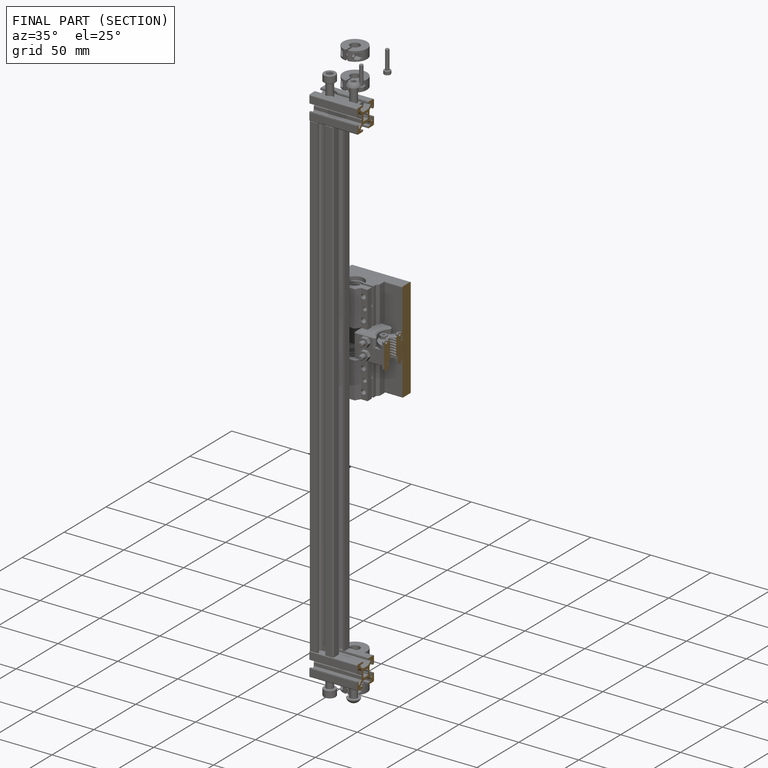
[diagram: finished part — half-section view (interior)]
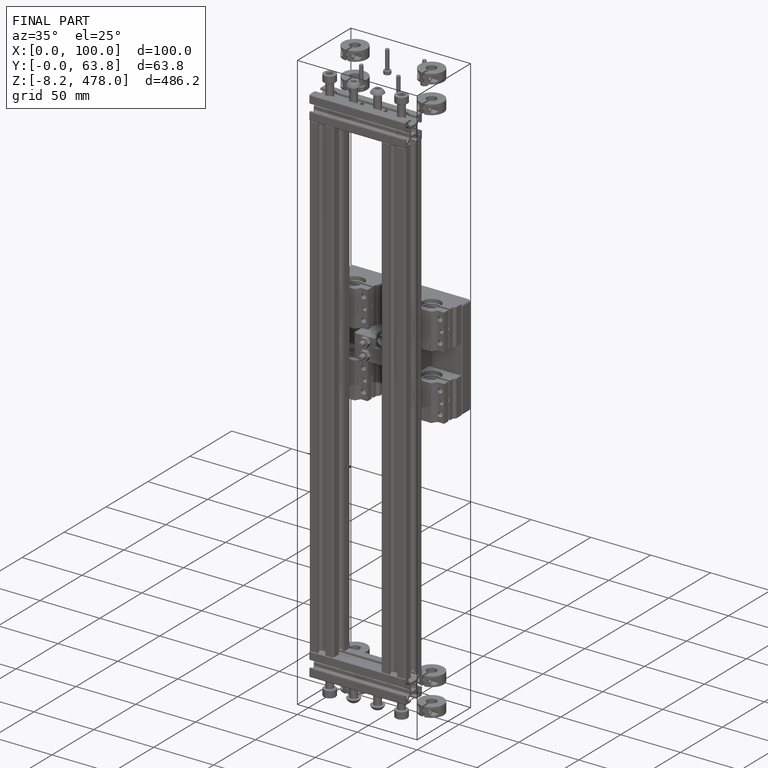
[diagram: finished part — iso view with bounding-box wireframe]
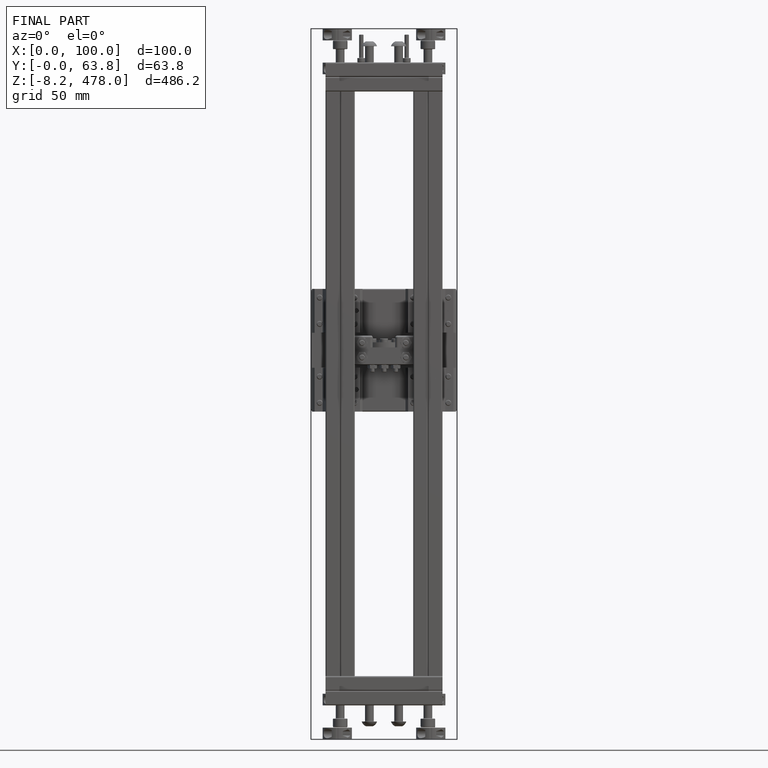
[diagram: finished part — front view with bounding-box wireframe]
